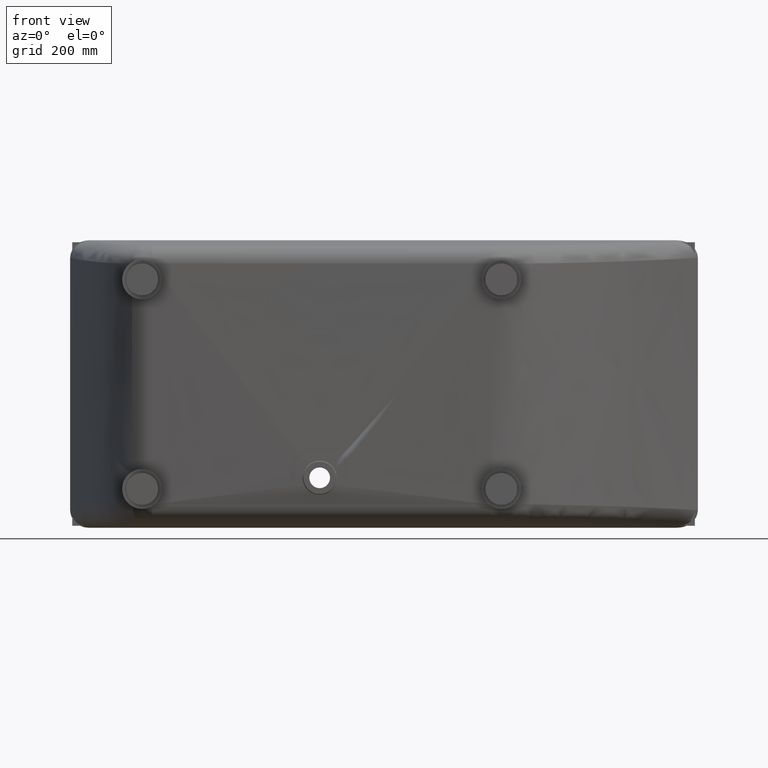
[diagram: clean part render]
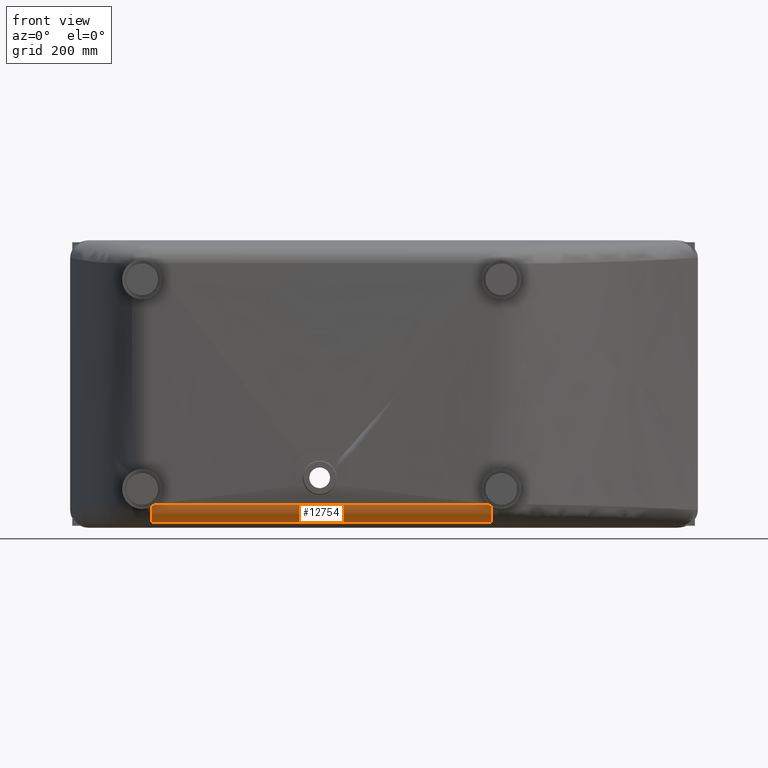
[diagram: same view with one face highlighted and labeled with its STEP entity id]
A machine part, front view. The second image highlights one B-rep face of the part: STEP entity #12754.
In plain terms, the highlighted cylindrical surface (edge-blend (fillet) strip) has radius 45 mm, axis along (-1, -0, 0).
Its self-contained STEP definition (entity closure, byte-faithful):
#261 = EDGE_CURVE ( 'NONE', #12420, #7720, #5046, .T. ) ;
#341 = B_SPLINE_CURVE_WITH_KNOTS ( 'NONE', 3,
 ( #8269, #8311, #8148, #8124 ),
 .UNSPECIFIED., .F., .F.,
 ( 4, 4 ),
 ( 0.0000000000000000000, 0.007102312382805269600 ),
 .UNSPECIFIED. ) ;
#433 = VECTOR ( 'NONE', #5955, 1000.000000000000000 ) ;
#484 = ORIENTED_EDGE ( 'NONE', *, *, #261, .F. ) ;
#910 = ORIENTED_EDGE ( 'NONE', *, *, #2535, .F. ) ;
#1057 = CARTESIAN_POINT ( 'NONE',  ( 1040.000000000000000, -464.6602644620315300, 38.49126316718542300 ) ) ;
#1152 = ORIENTED_EDGE ( 'NONE', *, *, #5839, .F. ) ;
#2535 = EDGE_CURVE ( 'NONE', #7720, #5451, #6036, .T. ) ;
#2753 = CARTESIAN_POINT ( 'NONE',  ( 190.0000000000027300, -420.0000000000000600, 44.01039155683261600 ) ) ;
#2762 = DIRECTION ( 'NONE',  ( 1.000000000000000000, 1.306144734853125600E-016, -3.826431479001173600E-018 ) ) ;
#2844 = DIRECTION ( 'NONE',  ( 0.0000000000000000000, -1.000000000000000000, 0.0000000000000000000 ) ) ;
#3215 = CARTESIAN_POINT ( 'NONE',  ( 1034.201523286394100, -464.9716243591704500, 42.41257977261460600 ) ) ;
#3235 = LINE ( 'NONE', #5918, #433 ) ;
#3572 = AXIS2_PLACEMENT_3D ( 'NONE', #7377, #10438, #8370 ) ;
#3683 = CARTESIAN_POINT ( 'NONE',  ( 190.0000000000001700, -421.4984982326275800, -0.9646515565076145800 ) ) ;
#3989 = EDGE_CURVE ( 'NONE', #9801, #4404, #4179, .T. ) ;
#4177 = ORIENTED_EDGE ( 'NONE', *, *, #11822, .F. ) ;
#4179 = CIRCLE ( 'NONE', #4224, 44.99999999999998600 ) ;
#4224 = AXIS2_PLACEMENT_3D ( 'NONE', #2753, #2762, #2844 ) ;
#4404 = VERTEX_POINT ( 'NONE', #3683 ) ;
#4462 = CARTESIAN_POINT ( 'NONE',  ( 1040.000000000000000, -419.9999999999999400, 44.01039155683261600 ) ) ;
#4497 = DIRECTION ( 'NONE',  ( 0.0000000000000000000, -1.000000000000000000, 0.0000000000000000000 ) ) ;
#4568 = DIRECTION ( 'NONE',  ( -1.000000000000000000, -1.306144734853125600E-016, 3.826431479001173600E-018 ) ) ;
#4609 = EDGE_CURVE ( 'NONE', #5451, #4404, #3235, .T. ) ;
#5009 = ORIENTED_EDGE ( 'NONE', *, *, #4609, .F. ) ;
#5046 = B_SPLINE_CURVE_WITH_KNOTS ( 'NONE', 3,
 ( #3215, #9969, #10062, #1057 ),
 .UNSPECIFIED., .F., .F.,
 ( 4, 4 ),
 ( 0.0006617126595253639600, 0.007668396123073561000 ),
 .UNSPECIFIED. ) ;
#5341 = CARTESIAN_POINT ( 'NONE',  ( 265.7414039207167200, -464.9684860638340100, 42.32427291372299300 ) ) ;
#5451 = VERTEX_POINT ( 'NONE', #12392 ) ;
#5615 = VERTEX_POINT ( 'NONE', #10651 ) ;
#5697 = CARTESIAN_POINT ( 'NONE',  ( 195.8814068767605100, -464.9716096562857500, 42.41216600245411400 ) ) ;
#5743 = CARTESIAN_POINT ( 'NONE',  ( 335.6013817342090400, -464.9644927801007800, 42.22095241411084700 ) ) ;
#5747 = CARTESIAN_POINT ( 'NONE',  ( 475.3213770671005700, -464.9571703712591100, 42.04556697768297400 ) ) ;
#5762 = CARTESIAN_POINT ( 'NONE',  ( 545.1814126835636200, -464.9541689720514300, 41.97995021268251000 ) ) ;
#5793 = CARTESIAN_POINT ( 'NONE',  ( 684.9015204709556900, -464.9541816668949000, 41.98023129724517600 ) ) ;
#5794 = CARTESIAN_POINT ( 'NONE',  ( 754.7615557019283900, -464.9571921202319200, 42.04606306948104300 ) ) ;
#5816 = CARTESIAN_POINT ( 'NONE',  ( 894.4815486912212900, -464.9645154576758700, 42.22152057264002400 ) ) ;
#5823 = CARTESIAN_POINT ( 'NONE',  ( 964.3415261711395500, -464.9685044158038100, 42.32476660060373100 ) ) ;
#5832 = CARTESIAN_POINT ( 'NONE',  ( 1034.201523286394100, -464.9716243591704500, 42.41257977261460600 ) ) ;
#5839 = EDGE_CURVE ( 'NONE', #9801, #5615, #341, .T. ) ;
#5918 = CARTESIAN_POINT ( 'NONE',  ( 7.877212311662461000E-018, -421.4984982326274700, -0.9646515565076199100 ) ) ;
#5919 = AXIS2_PLACEMENT_3D ( 'NONE', #4462, #4568, #4497 ) ;
#5955 = DIRECTION ( 'NONE',  ( -1.000000000000000000, -1.748739070675182500E-020, -5.248562419703017300E-019 ) ) ;
#6036 = CIRCLE ( 'NONE', #3572, 44.99999999999998600 ) ;
#7377 = CARTESIAN_POINT ( 'NONE',  ( 1040.000000000000000, -420.0000000000000600, 44.01039155683261600 ) ) ;
#7574 = CARTESIAN_POINT ( 'NONE',  ( 1034.201523286394100, -464.9716243591704500, 42.41257977261460600 ) ) ;
#7720 = VERTEX_POINT ( 'NONE', #8727 ) ;
#8124 = CARTESIAN_POINT ( 'NONE',  ( 195.8814068767605100, -464.9716096562857500, 42.41216600245411400 ) ) ;
#8148 = CARTESIAN_POINT ( 'NONE',  ( 194.0141255547902700, -464.9196093942850300, 40.94895858575786500 ) ) ;
#8269 = CARTESIAN_POINT ( 'NONE',  ( 190.0000000000001700, -464.6542833963384900, 38.44307852813589900 ) ) ;
#8311 = CARTESIAN_POINT ( 'NONE',  ( 192.0540073372096700, -464.8018054891902600, 39.62632317550385600 ) ) ;
#8370 = DIRECTION ( 'NONE',  ( 0.0000000000000000000, -1.000000000000000000, 0.0000000000000000000 ) ) ;
#8727 = CARTESIAN_POINT ( 'NONE',  ( 1040.000000000000000, -464.6602644620315300, 38.49126316718542300 ) ) ;
#9079 = CARTESIAN_POINT ( 'NONE',  ( 190.0000000000001700, -464.6542833963384900, 38.44307852813589900 ) ) ;
#9623 = CYLINDRICAL_SURFACE ( 'NONE', #5919, 44.99999999999998600 ) ;
#9801 = VERTEX_POINT ( 'NONE', #9079 ) ;
#9942 = FACE_OUTER_BOUND ( 'NONE', #12352, .T. ) ;
#9969 = CARTESIAN_POINT ( 'NONE',  ( 1036.043522504163300, -464.9203400358648000, 40.96914360201284200 ) ) ;
#10062 = CARTESIAN_POINT ( 'NONE',  ( 1037.976013724556000, -464.8049957474923400, 39.66241502818525800 ) ) ;
#10438 = DIRECTION ( 'NONE',  ( 1.000000000000000000, -1.084195105848563800E-017, 8.866757800290599800E-019 ) ) ;
#10651 = CARTESIAN_POINT ( 'NONE',  ( 195.8814068767605100, -464.9716096562857500, 42.41216600245411400 ) ) ;
#10950 = B_SPLINE_CURVE_WITH_KNOTS ( 'NONE', 3,
 ( #5697, #5341, #5743, #5747, #5762, #5793, #5794, #5816, #5823, #5832 ),
 .UNSPECIFIED., .F., .F.,
 ( 4, 2, 2, 2, 4 ),
 ( 0.9533811722242793200, 1.162961327750322600, 1.372541483276366000, 1.582121638802409300, 1.791701794328452600 ),
 .UNSPECIFIED. ) ;
#11822 = EDGE_CURVE ( 'NONE', #5615, #12420, #10950, .T. ) ;
#12352 = EDGE_LOOP ( 'NONE', ( #4177, #1152, #12537, #5009, #910, #484 ) ) ;
#12392 = CARTESIAN_POINT ( 'NONE',  ( 1040.000000000000000, -421.4984982326274700, -0.9646515565076193600 ) ) ;
#12420 = VERTEX_POINT ( 'NONE', #7574 ) ;
#12537 = ORIENTED_EDGE ( 'NONE', *, *, #3989, .T. ) ;
#12754 = ADVANCED_FACE ( 'NONE', ( #9942 ), #9623, .T. ) ;